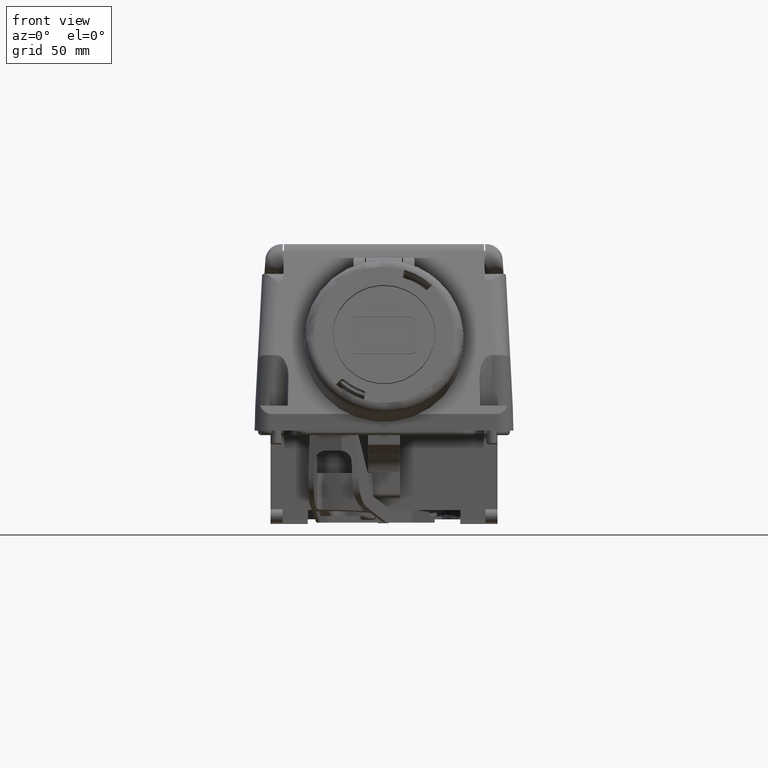
[diagram: clean part render]
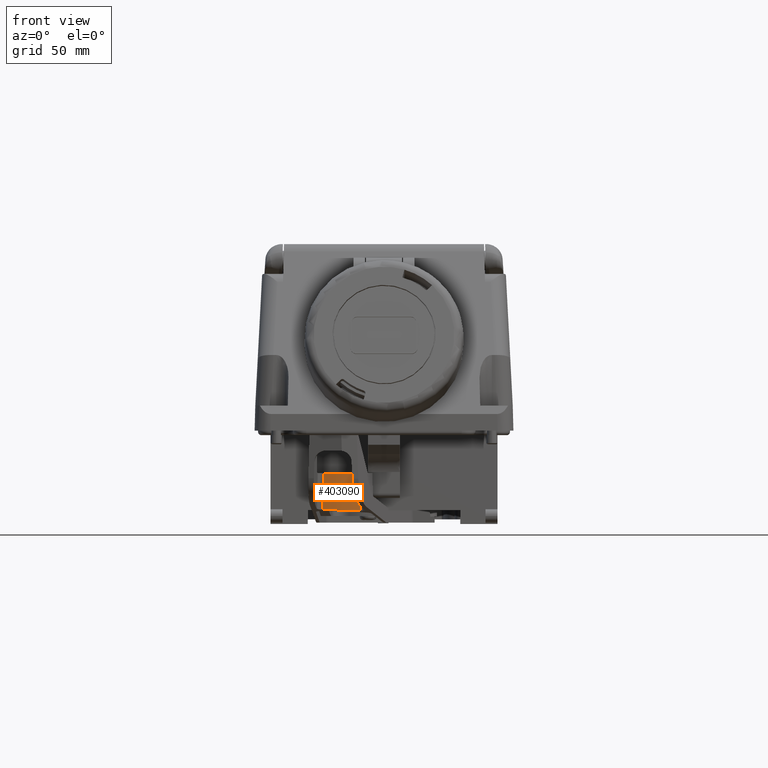
[diagram: same view with one face highlighted and labeled with its STEP entity id]
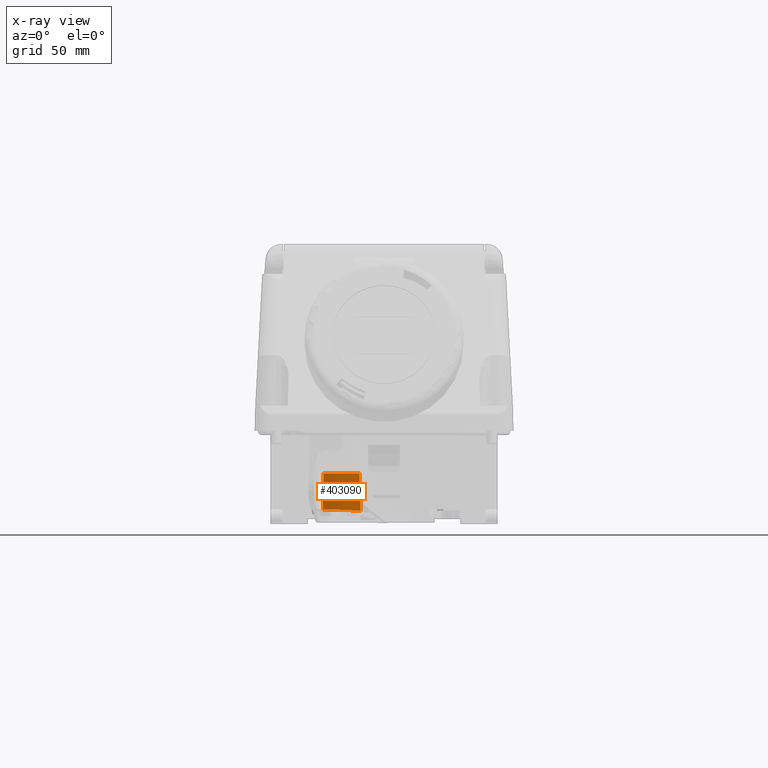
[diagram: x-ray of the same camera — body ghosted, the highlighted face saturated]
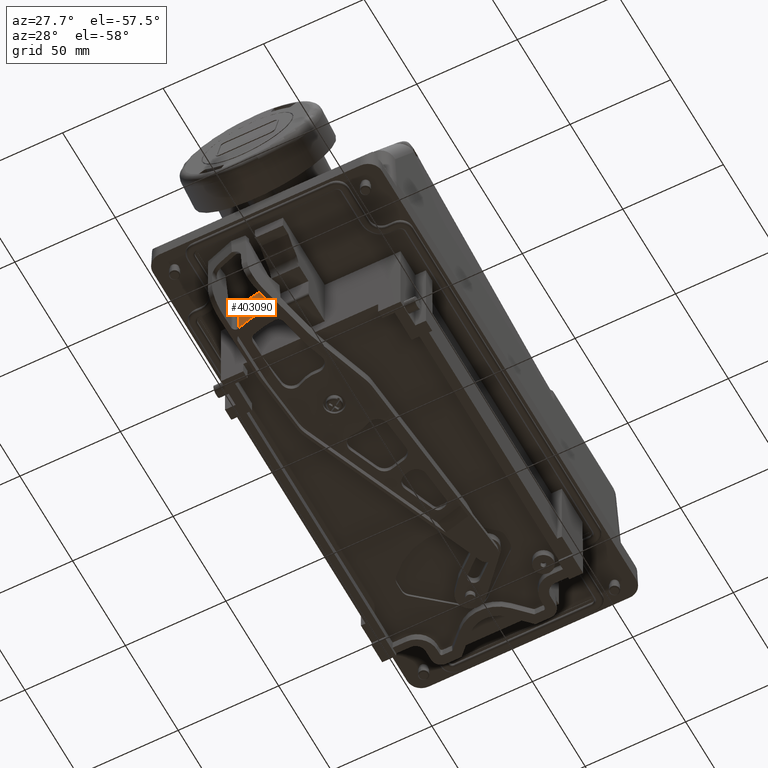
[diagram: same view with one face highlighted and labeled with its STEP entity id]
A machine part, front view. The second image highlights one B-rep face of the part: STEP entity #403090.
The next image is the same camera in x-ray: the body ghosted, the highlighted face saturated — about 0% of this face is hidden behind the body in this view.
A second angle (auxiliary view) of the same face is appended — the face is thin or edge-on in the first view.
In plain terms, the highlighted conical surface has half-angle 1.5 deg.
Its self-contained STEP definition (entity closure, byte-faithful):
#380040=CARTESIAN_POINT('',(246.000389065335,-29.1776762285289,
-54.8571130607742));
#380050=VERTEX_POINT('',#380040);
#380080=CARTESIAN_POINT('',(265.880739754632,23.3928121146533,
-69.19967400044));
#380090=DIRECTION('',(-0.0785130145396516,-0.234650610616241,
-0.968903915507273));
#380100=DIRECTION('',(-0.30743771974869,-0.918834504119785,
0.247437269857793));
#380110=AXIS2_PLACEMENT_3D('',#380080,#380090,#380100);
#380120=ELLIPSE('',#380110,58.0077717309438,56.2026996398296);
#380130=CARTESIAN_POINT('',(262.754465332453,-32.724042493016,
-55.355878773635));
#380140=VERTEX_POINT('',#380130);
#380150=EDGE_CURVE('',#380140,#380050,#380120,.T.);
#397470=CARTESIAN_POINT('',(262.18343058946,-33.1228411841161,
-38.7999979571017));
#397480=VERTEX_POINT('',#397470);
#397510=CARTESIAN_POINT('',(265.999999999986,23.7492416809752,
-38.7999947074652));
#397520=DIRECTION('',(1.13687147848063E-13,-5.70930396285938E-8,1.));
#397530=DIRECTION('',(1.,7.95916478845901E-17,-1.23833928056132E-13));
#397540=AXIS2_PLACEMENT_3D('',#397510,#397520,#397530);
#397550=CIRCLE('',#397540,57.);
#397560=CARTESIAN_POINT('',(246.349024922374,-29.7562645504824,
-38.799997766524));
#397570=VERTEX_POINT('',#397560);
#397580=EDGE_CURVE('',#397570,#397480,#397550,.T.);
#402570=CARTESIAN_POINT('',(246.000389002694,-29.1776763942902,
-54.8571130655144));
#402580=CARTESIAN_POINT('',(246.057594538115,-29.2731250190525,
-52.2195970260046));
#402590=CARTESIAN_POINT('',(246.11483047439,-29.3683695656092,
-49.582073927789));
#402600=CARTESIAN_POINT('',(246.231040928438,-29.5612423083175,
-44.2297025041664));
#402610=CARTESIAN_POINT('',(246.290017232544,-29.6588585297419,
-41.5148537406973));
#402620=CARTESIAN_POINT('',(246.349024922376,-29.756264550486,
-38.7999977664241));
#402630=B_SPLINE_CURVE_WITH_KNOTS('',3,(#402570,#402580,#402590,#402600,
#402610,#402620),.UNSPECIFIED.,.F.,.F.,(4,2,4),(58.7322836701386,
66.6520265575085,74.8039133104841),.UNSPECIFIED.);
#402640=EDGE_CURVE('',#380050,#397570,#402630,.T.);
#402790=CARTESIAN_POINT('',(262.754465332457,-32.7240424930136,
-55.3558787737349));
#402800=CARTESIAN_POINT('',(262.661380691815,-32.7893903650325,
-52.6605030988851));
#402810=CARTESIAN_POINT('',(262.568353774634,-32.8545304779766,
-49.9651200431018));
#402820=CARTESIAN_POINT('',(262.378003940972,-32.9874811909257,
-44.4464937252687));
#402830=CARTESIAN_POINT('',(262.280686546078,-33.0552719020854,
-41.6232497376427));
#402840=CARTESIAN_POINT('',(262.183430589456,-33.1228411841185,
-38.7999979570017));
#402850=B_SPLINE_CURVE_WITH_KNOTS('',3,(#402790,#402800,#402810,#402820,
#402830,#402840),.UNSPECIFIED.,.F.,.F.,(4,2,4),(46.7176224230404,
54.8111037786468,63.2884691340611),.UNSPECIFIED.);
#402860=EDGE_CURVE('',#380140,#397480,#402850,.T.);
#402980=CARTESIAN_POINT('',(265.999999999986,23.7492416809752,
-38.7999947074652));
#402990=DIRECTION('',(1.13700303141948E-13,-5.70930396261519E-8,
0.999999999999998));
#403000=DIRECTION('',(1.,2.40804966533325E-17,-1.23833928056132E-13));
#403010=AXIS2_PLACEMENT_3D('',#402980,#402990,#403000);
#403020=CONICAL_SURFACE('',#403010,57.,0.0261799387799149);
#403030=ORIENTED_EDGE('',*,*,#397580,.F.);
#403040=ORIENTED_EDGE('',*,*,#402860,.T.);
#403050=ORIENTED_EDGE('',*,*,#380150,.F.);
#403060=ORIENTED_EDGE('',*,*,#402640,.F.);
#403070=EDGE_LOOP('',(#403060,#403050,#403040,#403030));
#403080=FACE_OUTER_BOUND('',#403070,.T.);
#403090=ADVANCED_FACE('',(#403080),#403020,.T.);